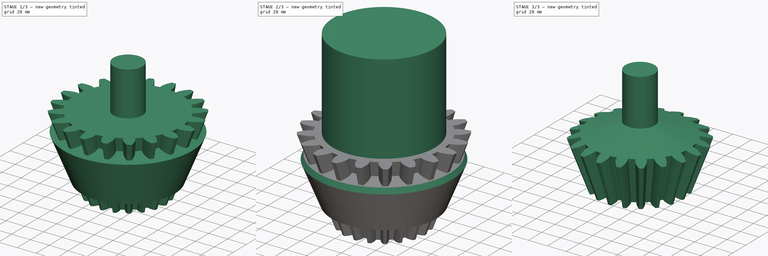
[diagram: build sequence overview — one tinted view per stage of 3, left to right]
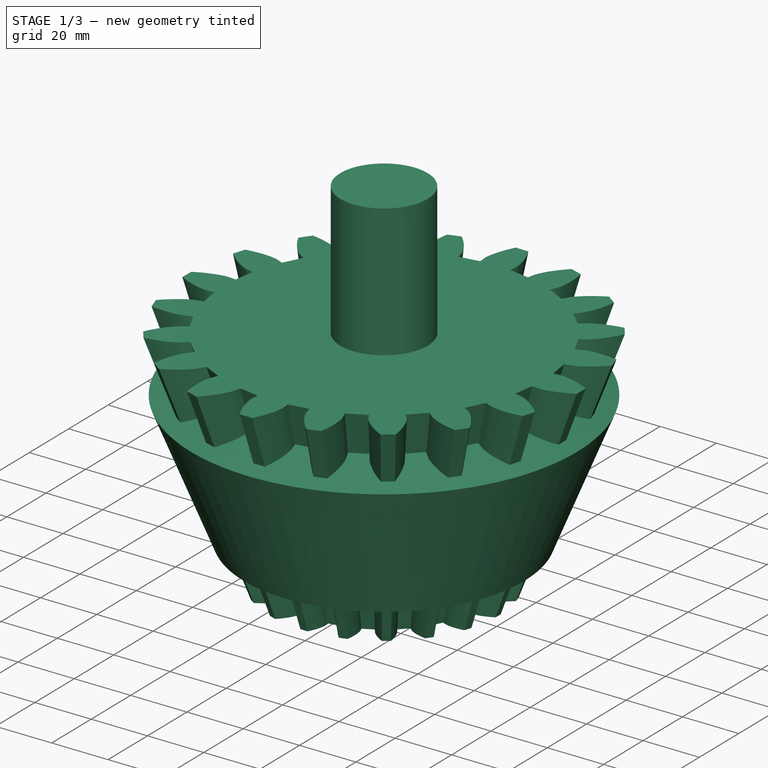
[diagram: stage 1 of 3 — iso view after this stage's code; geometry added in this stage tinted green]
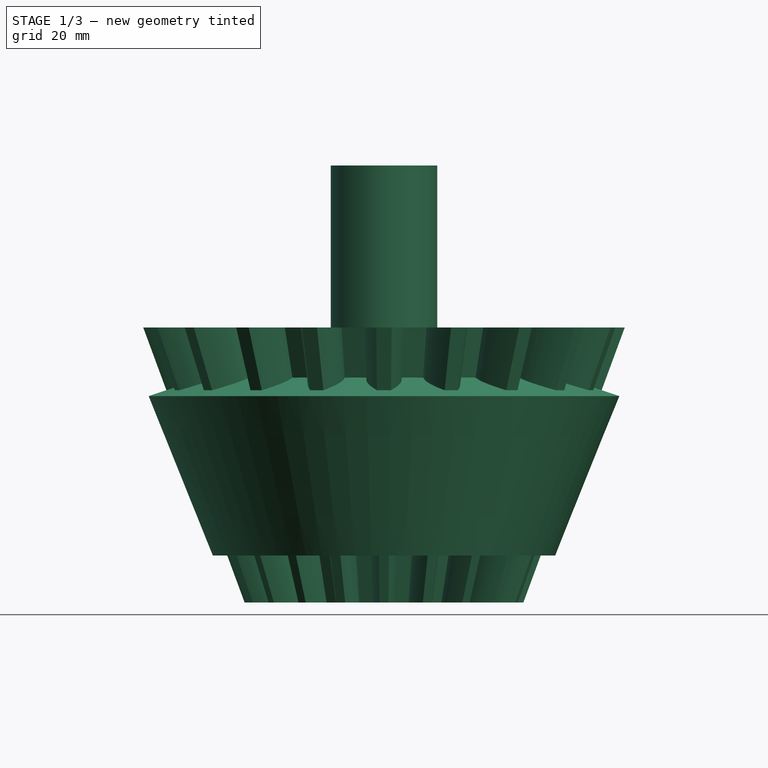
[diagram: stage 1 of 3 — front view after this stage's code; geometry added in this stage tinted green]
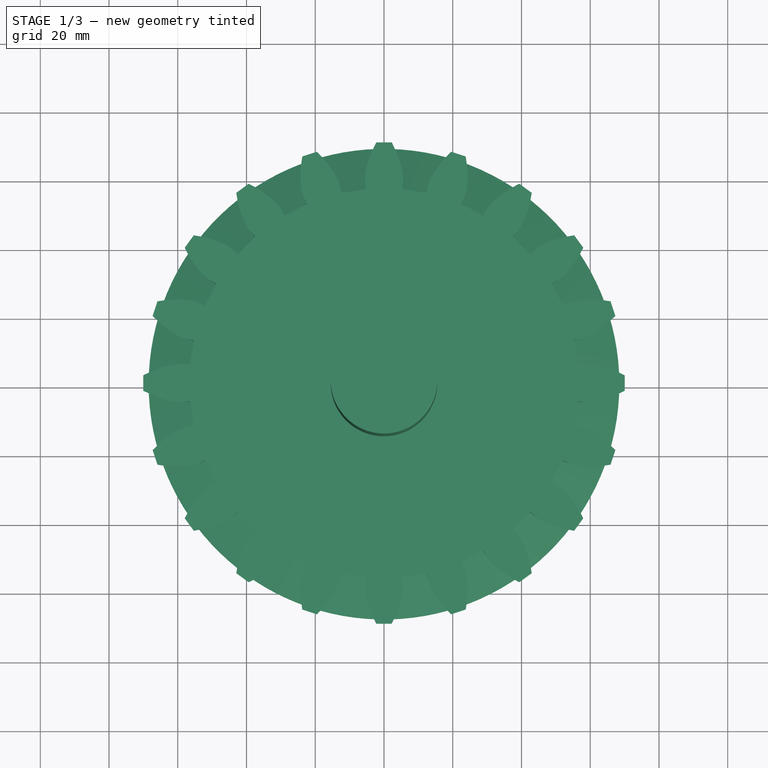
[diagram: stage 1 of 3 — top view after this stage's code; geometry added in this stage tinted green]
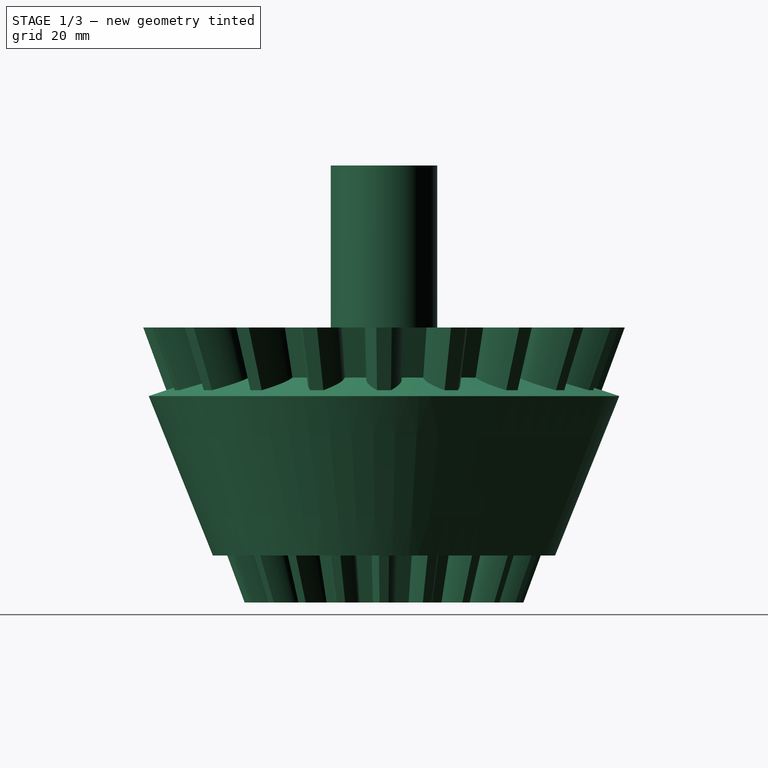
[diagram: stage 1 of 3 — right view after this stage's code; geometry added in this stage tinted green]
FCSTD DOCUMENT  (FreeCAD 0.19R21654 (Git))
Label: bevel_gear_example
License: All rights reserved
LicenseURL: http://en.wikipedia.org/wiki/All_rights_reserved
objects: Sketcher::SketchObject×1, Part::Cylinder×1, Part::Revolution×1, Part::Chamfer×1, Part::FeaturePython×1, Part::MultiFuse×1, Part::MultiCommon×1
note: 7 computed .brp shape members not serialized (recipe doc carries the construction recipe); baked Part::Feature solids carry a one-line shape summary decoded from their .brp

FEATURE [Part::Revolution] Revolve
  Angle = 360
  Axis = (0,0,1)
  Base = (0,0,0)
  FaceMakerClass = Part::FaceMakerBullseye
  Solid = true
  Source = -> Sketch
  Symmetric = false
FEATURE [Part::FeaturePython] BevelGear001  label="bevel_gear"  # WARN: FeaturePython — macro-defined, semantics opaque (R4)
  backlash = 0
  beta = 0
  clearance = 0.1
  height = 80
  m = 5
  numpoints = 6
  pitch_angle = 18.43
  pressure_angle = 20
  reset_origin = false
  teeth = 20
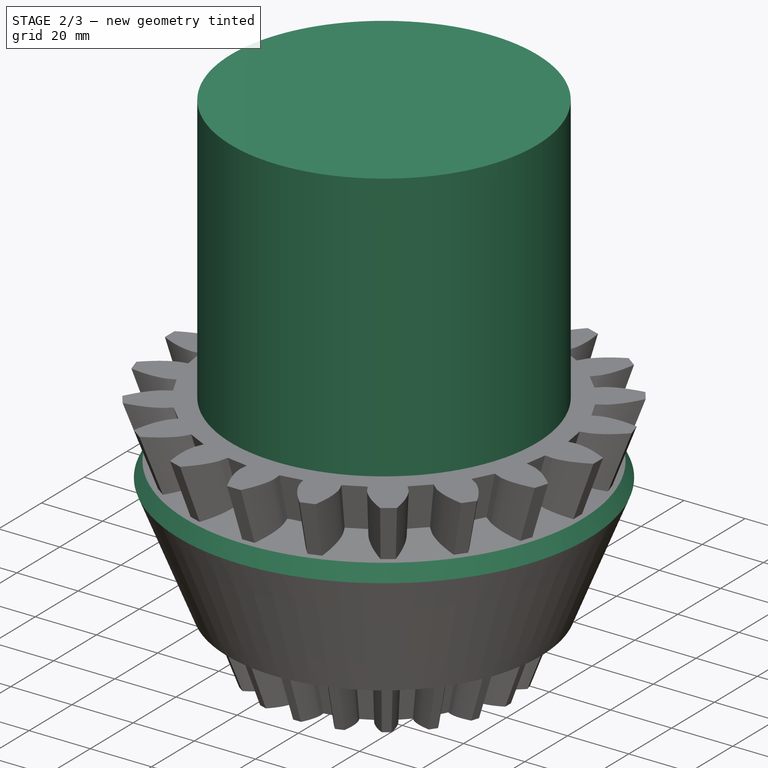
[diagram: stage 2 of 3 — iso view after this stage's code; geometry added in this stage tinted green]
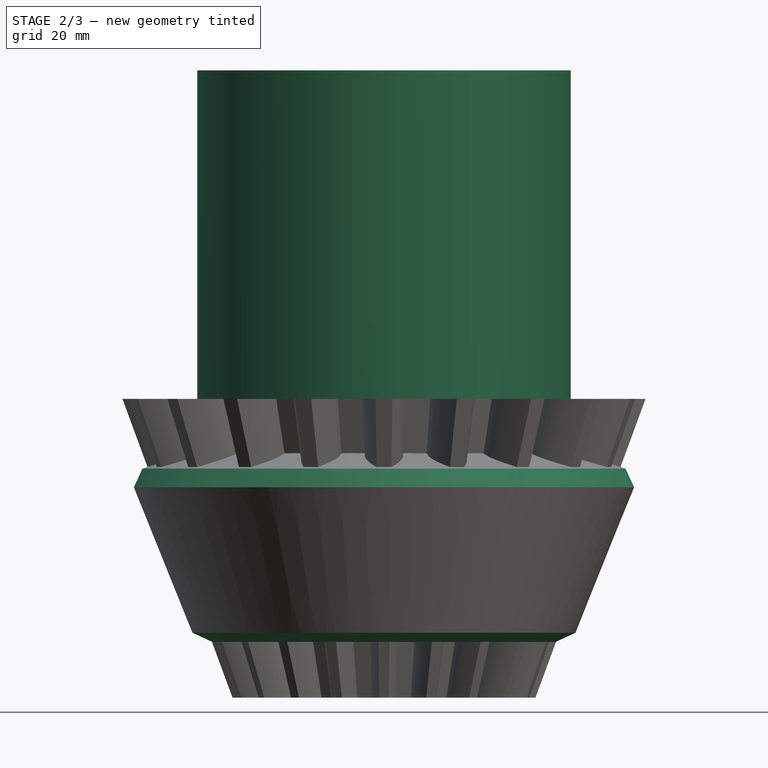
[diagram: stage 2 of 3 — front view after this stage's code; geometry added in this stage tinted green]
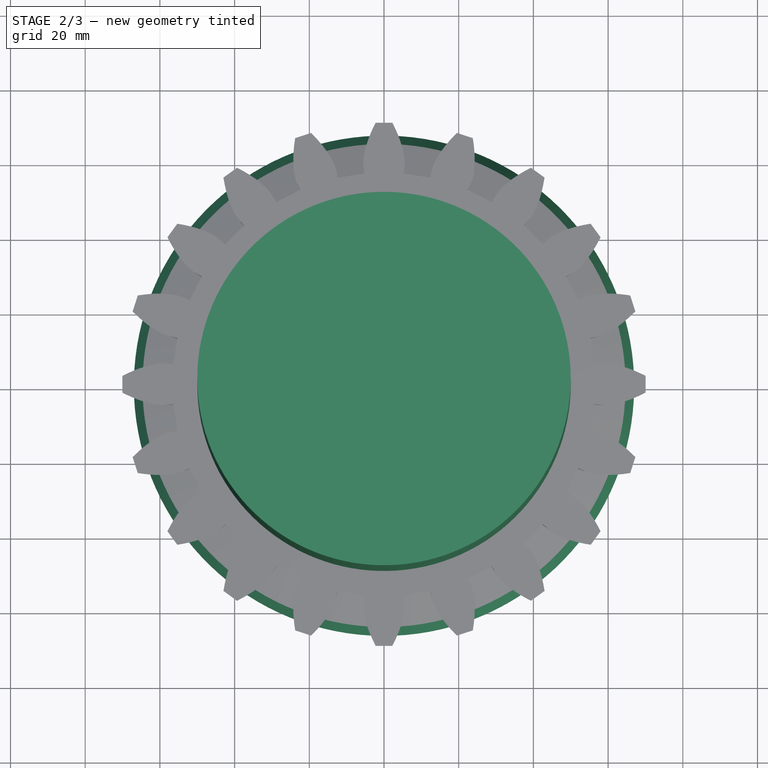
[diagram: stage 2 of 3 — top view after this stage's code; geometry added in this stage tinted green]
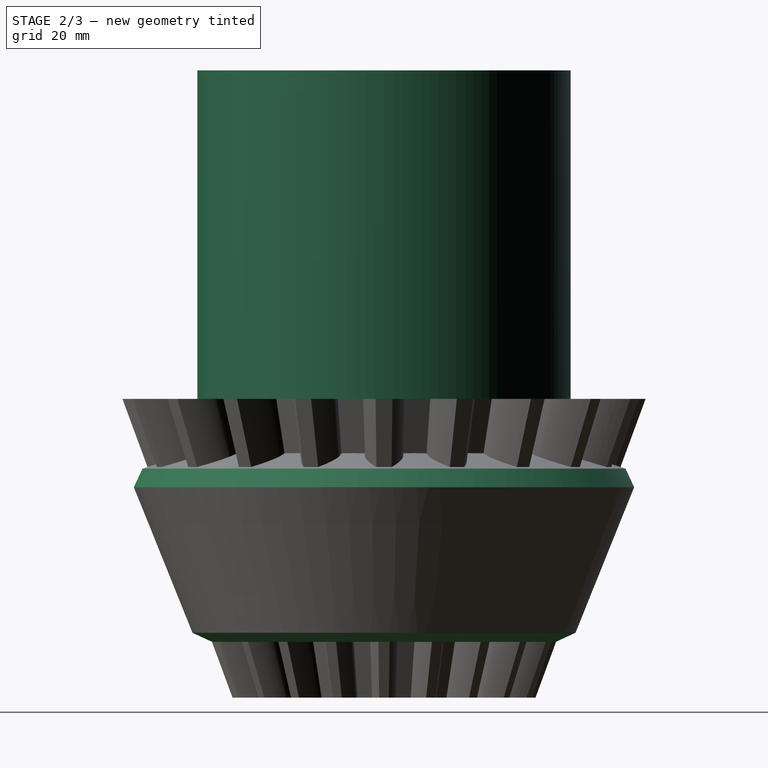
[diagram: stage 2 of 3 — right view after this stage's code; geometry added in this stage tinted green]
FEATURE [Sketcher::SketchObject] Sketch
  MapMode = 5
  Placement = pos=(0,0,0) rot=(1,0,0;1.5708rad)
  sketch-geometry (13):
    g0: LineSegment [constr] StartX=0 StartY=0 StartZ=0 EndX=-77.0789 EndY=231.237 EndZ=0
    g1: LineSegment [constr] StartX=0 StartY=0 StartZ=0 EndX=-243.745 EndY=0 EndZ=0
    g2: LineSegment [constr] StartX=0 StartY=0 StartZ=0 EndX=0 EndY=243.745 EndZ=0
    g3: LineSegment [constr] StartX=-50 StartY=0 StartZ=0 EndX=-50 EndY=150 EndZ=0
    g4: LineSegment [constr] StartX=-50 StartY=150 StartZ=0 EndX=0 EndY=150 EndZ=0
    g5: LineSegment StartX=-68.4759 StartY=170.096 StartZ=0 EndX=-49.8036 EndY=123.713 EndZ=0
    g6: LineSegment StartX=-49.8036 StartY=123.713 StartZ=0 EndX=-11.2781 EndY=136.555 EndZ=0
    g7: LineSegment StartX=-11.2781 StartY=136.555 StartZ=0 EndX=0 EndY=136.555 EndZ=0
    g8: LineSegment StartX=0 StartY=136.555 StartZ=0 EndX=0 EndY=237.176 EndZ=0
    g9: LineSegment StartX=0 StartY=237.176 StartZ=0 EndX=-15.5065 EndY=237.176 EndZ=0
    g10: LineSegment StartX=-15.5065 StartY=237.176 StartZ=0 EndX=-15.5065 EndY=187.752 EndZ=0
    g11: LineSegment StartX=-15.5065 StartY=187.752 StartZ=0 EndX=-68.4759 EndY=170.096 EndZ=0
    g12: LineSegment [constr] StartX=-15.5065 StartY=187.752 StartZ=0 EndX=-11.2781 EndY=136.555 EndZ=0
  constraints (36):
    c: Coincident(g-1,g0)
    c: Coincident(g-1,g1)
    c: PointOnObject(g1,g-1)
    c: Equal(g2,g0)
    c: Equal(g0,g1)
    c: Coincident(g2,g-1)
    c: PointOnObject(g2,g-2)
    c: PointOnObject(g3,g1)
    c: PointOnObject(g3,g0)
    c: Coincident(g4,g3)
    c: PointOnObject(g4,g2)
    c: Perpendicular(g2,g4)
    c: Perpendicular(g1,g3)
    c: DistanceX(g4) = 50
    c: DistanceY(g3) = 150
    c: Angle(g2,g0) = 0.321751
    c: Coincident(g5,g6)
    c: Coincident(g6,g7)
    c: PointOnObject(g7,g2)
    c: Horizontal(g7)
    c: Coincident(g7,g8)
    c: PointOnObject(g8,g2)
    c: Coincident(g8,g9)
    c: Horizontal(g9)
    c: Coincident(g9,g10)
    c: Vertical(g10)
    c: Coincident(g10,g11)
    c: Coincident(g11,g5)
    c: PointOnObject(g-1,g5)
    c: Perpendicular(g0,g11)
    c: Perpendicular(g0,g6)
    c: Coincident(g12,g10)
    c: Coincident(g12,g6)
    c: PointOnObject(g-1,g12)
    c: Distance(g3,g6) = 25
    c: Distance(g5) = 50
FEATURE [Part::Cylinder] Cylinder  label="Zylinder"
  Angle = 360
  AttacherType = Attacher::AttachEngine3D
  Height = 88
  Placement = pos=(0,0,190) rot=(0,0,1;0rad)
  Radius = 50
FEATURE [Part::Chamfer] Chamfer
  Base = -> Revolve
  Edges = 2 edges r=4: [Edge1,Edge2]
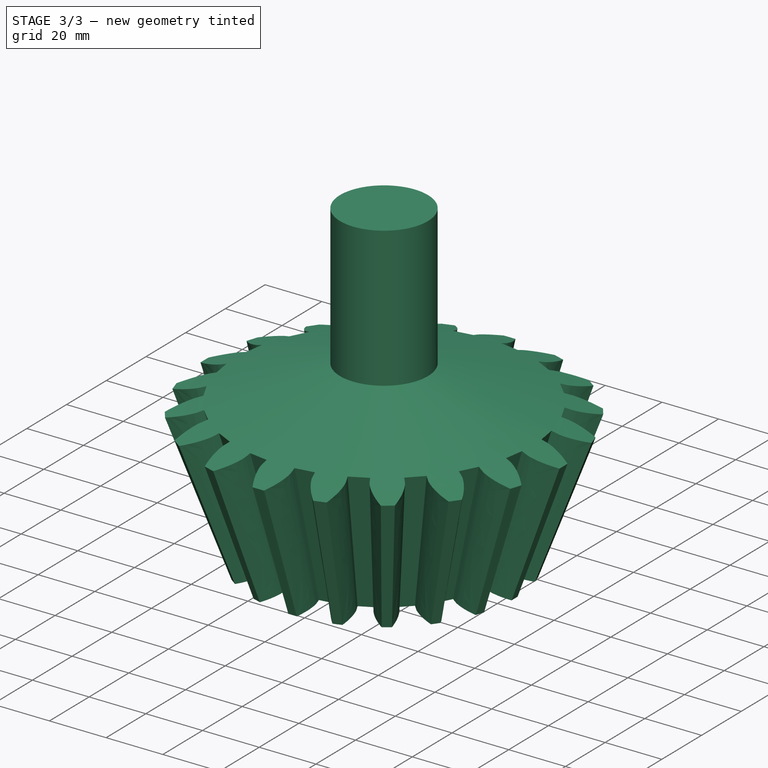
[diagram: stage 3 of 3 — iso view after this stage's code; geometry added in this stage tinted green]
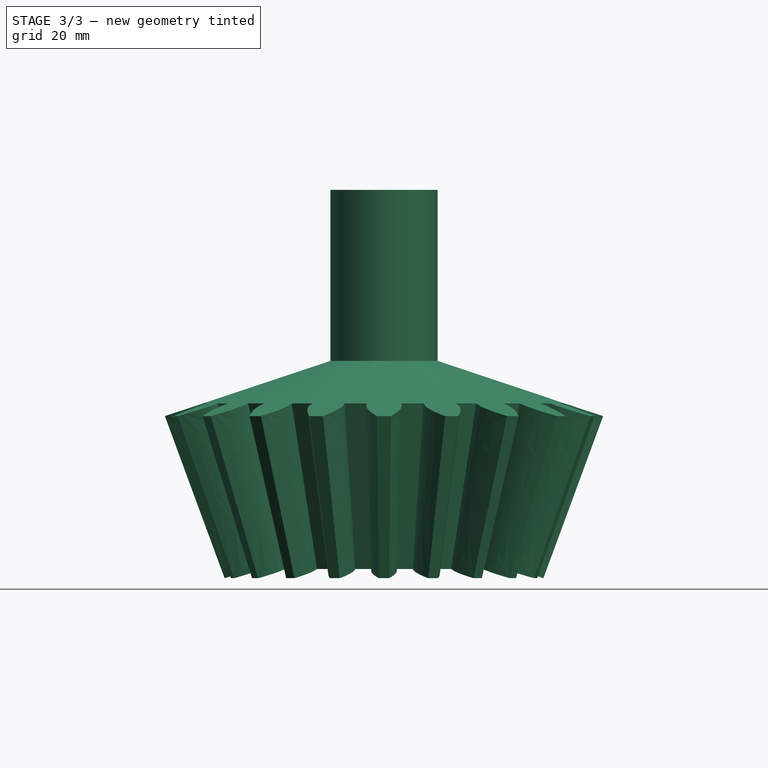
[diagram: stage 3 of 3 — front view after this stage's code; geometry added in this stage tinted green]
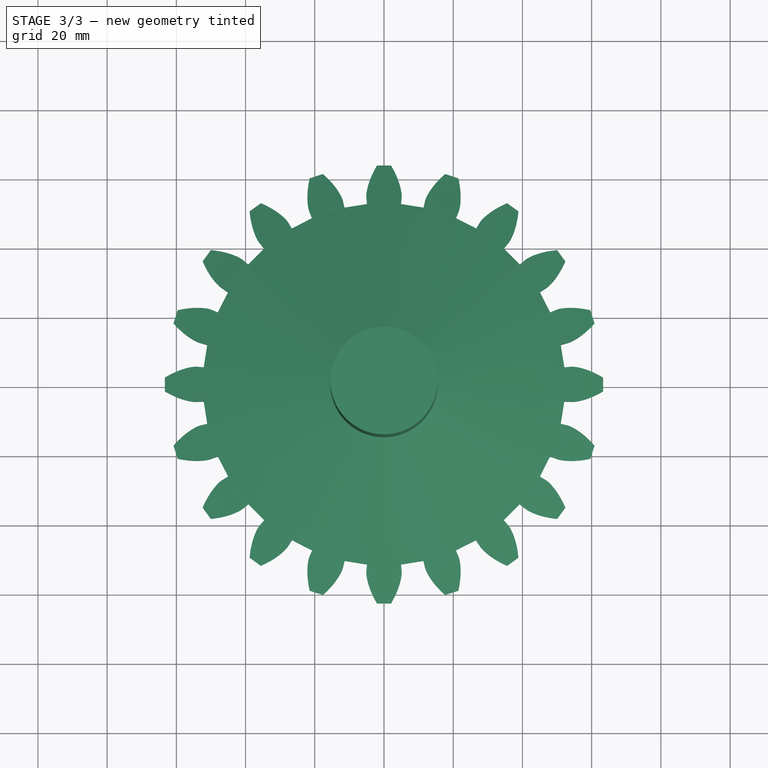
[diagram: stage 3 of 3 — top view after this stage's code; geometry added in this stage tinted green]
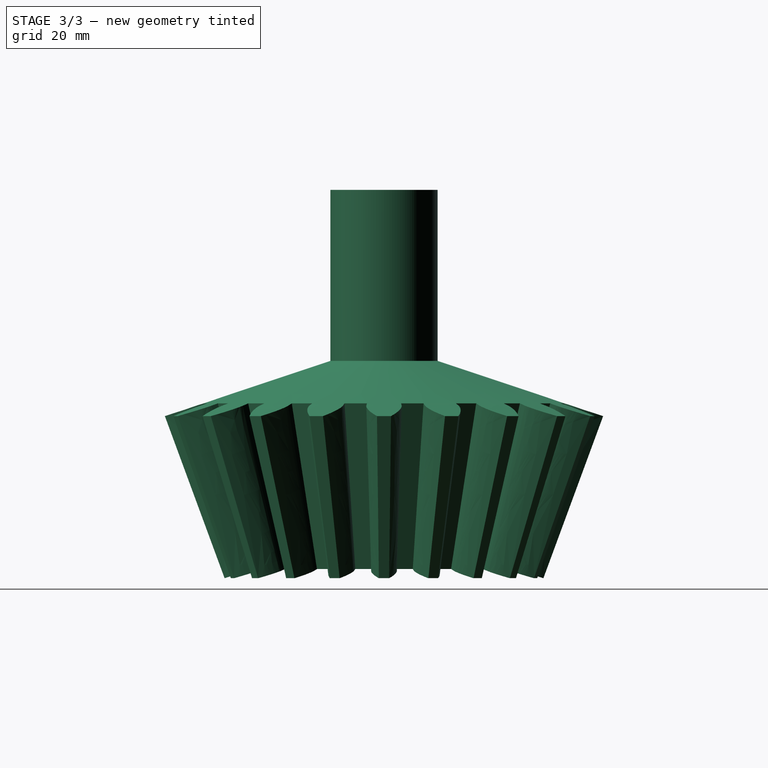
[diagram: stage 3 of 3 — right view after this stage's code; geometry added in this stage tinted green]
FEATURE [Part::MultiFuse] Fusion
  Shapes = -> [Cylinder,BevelGear001]
FEATURE [Part::MultiCommon] Common
  Shapes = -> [Fusion,Chamfer]
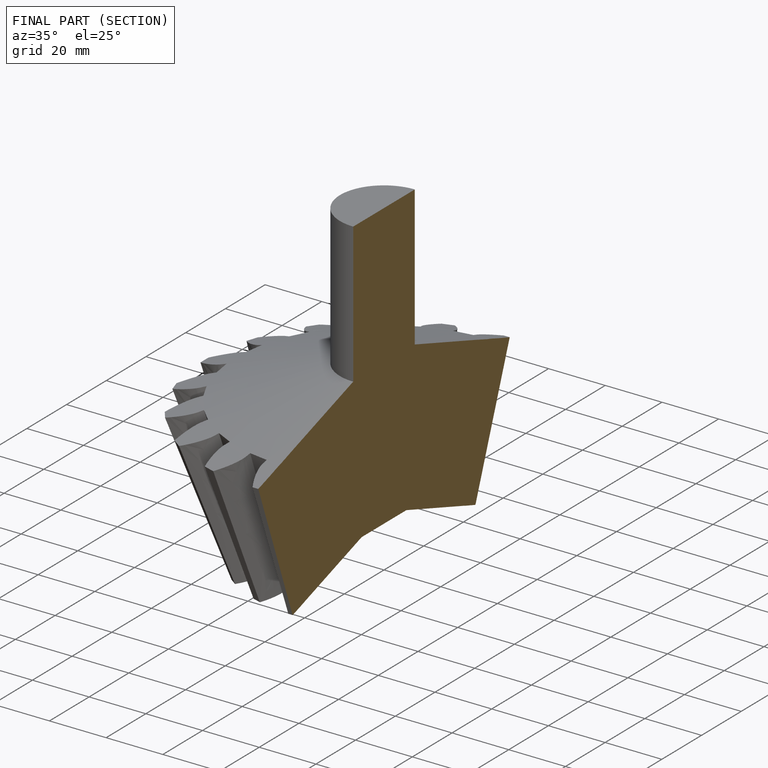
[diagram: finished part — half-section view (interior)]
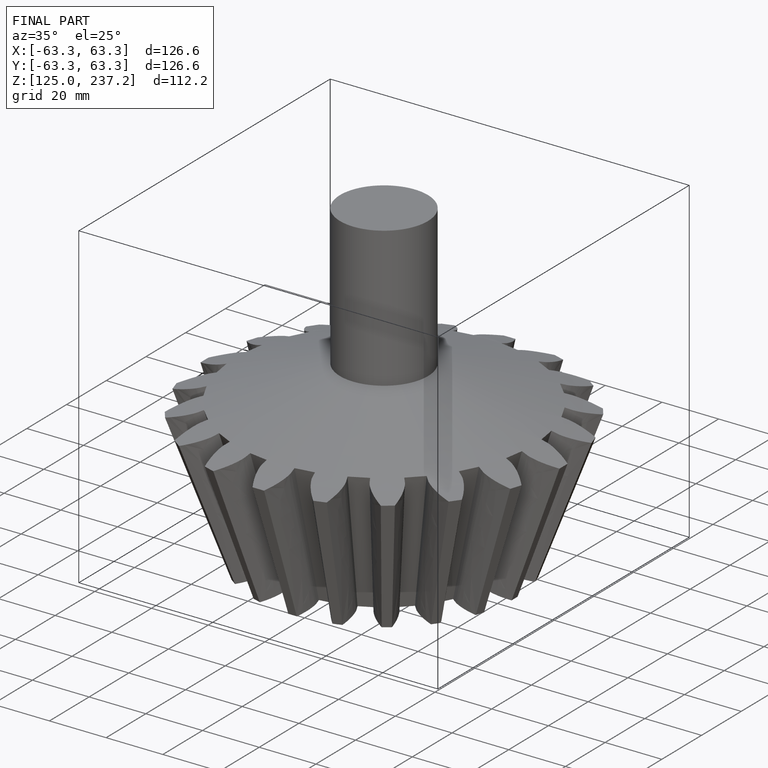
[diagram: finished part — iso view with bounding-box wireframe]
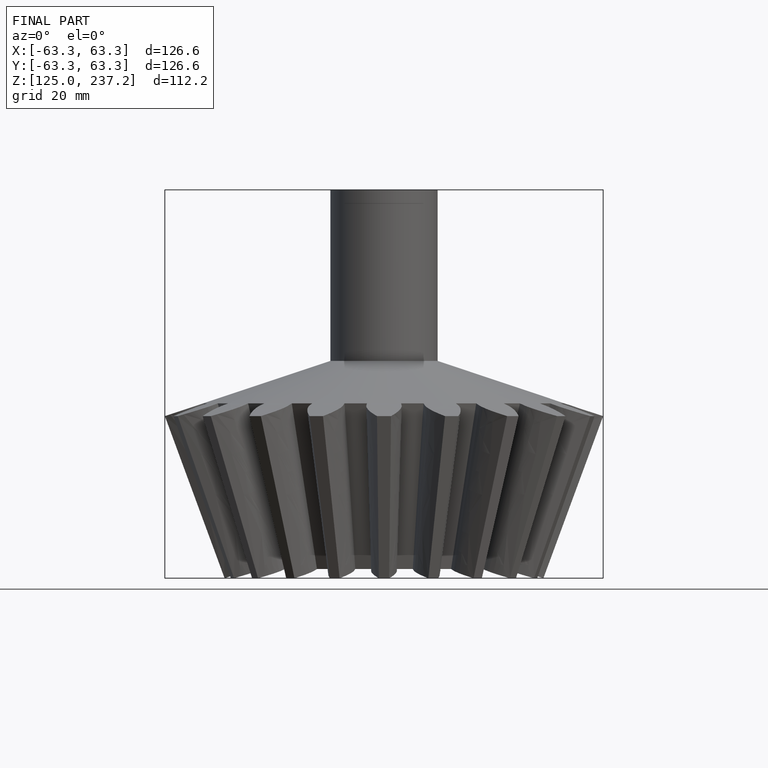
[diagram: finished part — front view with bounding-box wireframe]
